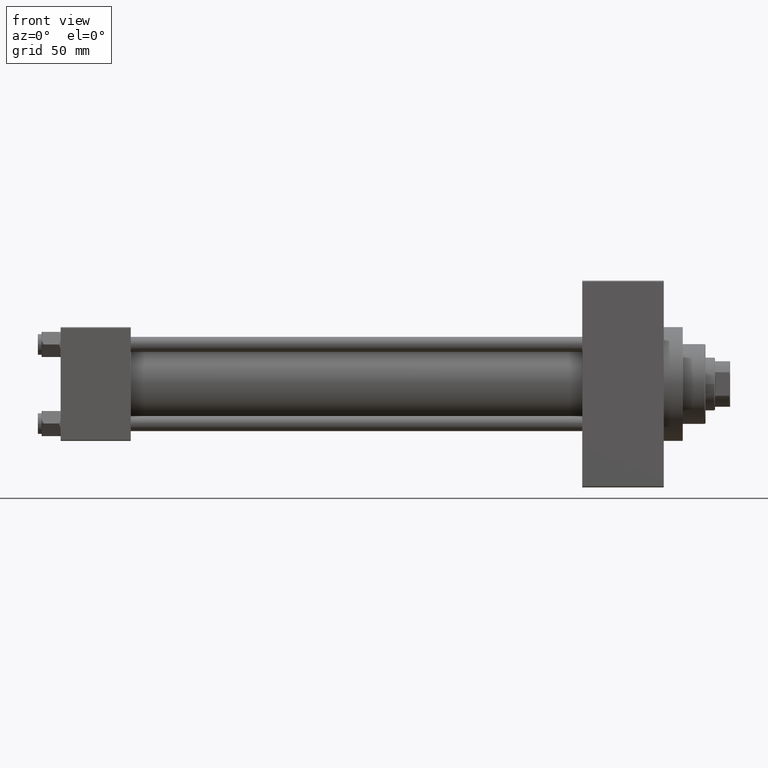
[diagram: clean part render]
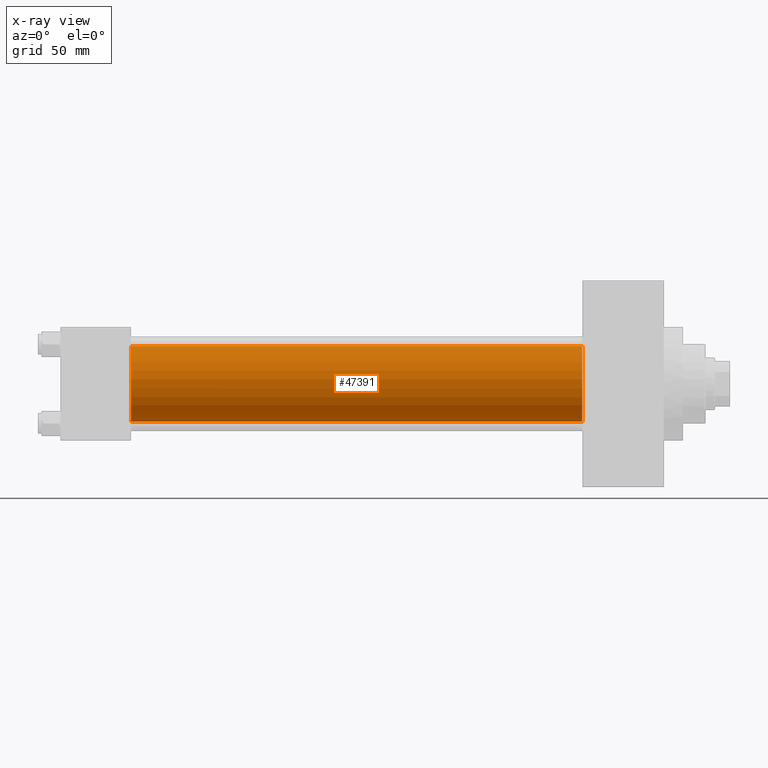
[diagram: x-ray — body ghosted, one internal face saturated and labeled with its STEP entity id]
A machine part, front view, then the same camera in x-ray: the body is ghosted and one INTERNAL B-rep face — a face not visible from any outside direction — is saturated and labeled: STEP entity #47391.
In plain terms, the highlighted cylindrical surface (partial cylindrical patch) has radius 20 mm, axis along (-1, -0, -0).
Its self-contained STEP definition (entity closure, byte-faithful):
#763 = AXIS2_PLACEMENT_3D ( 'NONE', #27582, #38384, #9047 ) ;
#2484 = CYLINDRICAL_SURFACE ( 'NONE', #42155, 20.00000000000000000 ) ;
#3016 = CARTESIAN_POINT ( 'NONE',  ( 37.00000000000000000, -1.527916156705042519E-16, -20.00000000000000000 ) ) ;
#4889 = ORIENTED_EDGE ( 'NONE', *, *, #24663, .F. ) ;
#5175 = VECTOR ( 'NONE', #15377, 1000.000000000000000 ) ;
#5689 = LINE ( 'NONE', #9758, #35242 ) ;
#8045 = EDGE_CURVE ( 'NONE', #25150, #42590, #31467, .T. ) ;
#9047 = DIRECTION ( 'NONE',  ( 0.000000000000000000, 0.000000000000000000, -1.000000000000000000 ) ) ;
#9189 = DIRECTION ( 'NONE',  ( 0.000000000000000000, 0.000000000000000000, 1.000000000000000000 ) ) ;
#9661 = CARTESIAN_POINT ( 'NONE',  ( 274.9999999999999432, -2.602085213965210642E-15, 0.000000000000000000 ) ) ;
#9758 = CARTESIAN_POINT ( 'NONE',  ( 274.9999999999999432, -2.602085213965210642E-15, 20.00000000000000000 ) ) ;
#10562 = CIRCLE ( 'NONE', #16697, 20.00000000000000000 ) ;
#13287 = FACE_OUTER_BOUND ( 'NONE', #40825, .T. ) ;
#13611 = DIRECTION ( 'NONE',  ( -1.000000000000000000, -0.000000000000000000, -0.000000000000000000 ) ) ;
#14391 = CARTESIAN_POINT ( 'NONE',  ( 274.9999999999999432, -1.527916156705042519E-16, -20.00000000000000000 ) ) ;
#15377 = DIRECTION ( 'NONE',  ( -1.000000000000000000, -0.000000000000000000, -0.000000000000000000 ) ) ;
#16697 = AXIS2_PLACEMENT_3D ( 'NONE', #21368, #36035, #43731 ) ;
#17534 = CARTESIAN_POINT ( 'NONE',  ( 37.00000000000000000, -2.602085213965210642E-15, 20.00000000000000000 ) ) ;
#19935 = EDGE_CURVE ( 'NONE', #42590, #38831, #31776, .T. ) ;
#20221 = ORIENTED_EDGE ( 'NONE', *, *, #19935, .T. ) ;
#21368 = CARTESIAN_POINT ( 'NONE',  ( 37.00000000000000000, -2.602085213965210642E-15, 0.000000000000000000 ) ) ;
#24663 = EDGE_CURVE ( 'NONE', #25150, #37388, #5689, .T. ) ;
#25150 = VERTEX_POINT ( 'NONE', #32964 ) ;
#27582 = CARTESIAN_POINT ( 'NONE',  ( 274.9999999999999432, -2.602085213965210642E-15, 0.000000000000000000 ) ) ;
#31467 = CIRCLE ( 'NONE', #763, 20.00000000000000000 ) ;
#31776 = LINE ( 'NONE', #39225, #5175 ) ;
#32964 = CARTESIAN_POINT ( 'NONE',  ( 274.9999999999999432, -2.602085213965210642E-15, 20.00000000000000000 ) ) ;
#35242 = VECTOR ( 'NONE', #13611, 1000.000000000000000 ) ;
#36035 = DIRECTION ( 'NONE',  ( 1.000000000000000000, 0.000000000000000000, 0.000000000000000000 ) ) ;
#37388 = VERTEX_POINT ( 'NONE', #17534 ) ;
#38384 = DIRECTION ( 'NONE',  ( 1.000000000000000000, 0.000000000000000000, 0.000000000000000000 ) ) ;
#38831 = VERTEX_POINT ( 'NONE', #3016 ) ;
#39225 = CARTESIAN_POINT ( 'NONE',  ( 274.9999999999999432, -1.527916156705042519E-16, -20.00000000000000000 ) ) ;
#39238 = DIRECTION ( 'NONE',  ( -1.000000000000000000, -0.000000000000000000, -0.000000000000000000 ) ) ;
#40825 = EDGE_LOOP ( 'NONE', ( #45121, #20221, #46460, #4889 ) ) ;
#42155 = AXIS2_PLACEMENT_3D ( 'NONE', #9661, #39238, #9189 ) ;
#42580 = EDGE_CURVE ( 'NONE', #37388, #38831, #10562, .T. ) ;
#42590 = VERTEX_POINT ( 'NONE', #14391 ) ;
#43731 = DIRECTION ( 'NONE',  ( 0.000000000000000000, 0.000000000000000000, -1.000000000000000000 ) ) ;
#45121 = ORIENTED_EDGE ( 'NONE', *, *, #8045, .T. ) ;
#46460 = ORIENTED_EDGE ( 'NONE', *, *, #42580, .F. ) ;
#47391 = ADVANCED_FACE ( 'NONE', ( #13287 ), #2484, .F. ) ;